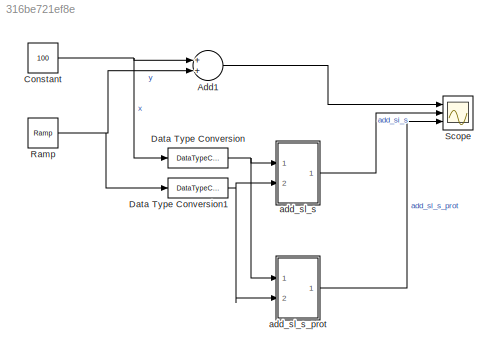
MODEL slx_316be721ef8e
KIND model
CONFIG AbsTol = auto
CONFIG EnableMultiTasking = off
CONFIG FixedStep = 1
CONFIG MaxStep = auto
CONFIG MinStep = auto
CONFIG RelTol = 1e-3
CONFIG SampleTimeConstraint = Unconstrained
CONFIG Solver = FixedStepDiscrete
CONFIG SolverName = FixedStepDiscrete
CONFIG StartTime = 0.0
CONFIG StopTime = 200
BLOCK [Sum] Add1
  AccumDataTypeStr = double
  InputSameDT = off
  OutDataTypeStr = Inherit: Same as accumulator
  Ports = [2, 1]
  SaturateOnIntegerOverflow = off
BLOCK [Constant] Constant
  Value = 100
BLOCK [DataTypeConversion] Data Type Conversion
  OutDataTypeStr = int8
  RndMeth = Floor
  SaturateOnIntegerOverflow = off
BLOCK [DataTypeConversion] Data Type Conversion1
  OutDataTypeStr = int8
  RndMeth = Floor
  SaturateOnIntegerOverflow = off
BLOCK [Reference] Ramp  REF=simulink/Sources/Ramp
  Ports = [0, 1]
  SourceBlock = simulink/Sources/Ramp
  SourceProductBaseCode = SL
  SourceProductName = Simulink
  SourceType = Ramp
BLOCK [Scope] Scope
  NumInputPorts = 3
  Ports = [3]
  ScopeSpecificationString = Simulink.scopes.TimeScopeBlockCfg('CurrentConfiguration', extmgr.ConfigurationSet(extmgr.Configuration('Core','General UI',true),extmgr.Configuration('Core','Source UI',true),extmgr.Configuration('Sources','WiredSimulink',true),extmgr.Configuration('Visuals','Time Domain',true,'SerializedDisplays',{struct('MinYLimReal','-181.5','MaxYLimReal','353.5','YLabelReal','','MinYLimMag',' 0.00000','MaxYLim...<+1419ch>
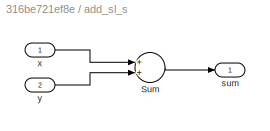
BLOCK [SubSystem] add_sl_s
  Ports = [2, 1]
  RequestExecContextInheritance = off
  Variant = off
BLOCK [Sum] add_sl_s/Sum
  AccumDataTypeStr = int8
  InputSameDT = off
  OutDataTypeStr = Inherit: Same as accumulator
  Ports = [2, 1]
  SaturateOnIntegerOverflow = off
BLOCK [Outport] add_sl_s/sum
  IconDisplay = Port number
BLOCK [Inport] add_sl_s/x
  IconDisplay = Port number
BLOCK [Inport] add_sl_s/y
  IconDisplay = Port number
  Port = 2
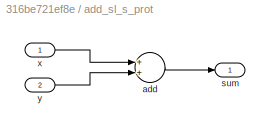
BLOCK [SubSystem] add_sl_s_prot
  Ports = [2, 1]
  RequestExecContextInheritance = off
  Variant = off
BLOCK [Sum] add_sl_s_prot/add
  AccumDataTypeStr = int8
  InputSameDT = off
  OutDataTypeStr = Inherit: Same as accumulator
  Ports = [2, 1]
BLOCK [Outport] add_sl_s_prot/sum
  IconDisplay = Port number
BLOCK [Inport] add_sl_s_prot/x
  IconDisplay = Port number
BLOCK [Inport] add_sl_s_prot/y
  IconDisplay = Port number
  Port = 2
LINE Add1:1 -> Scope:1
NET Constant:1 -> Add1:1, Data Type Conversion:1
NET Data Type Conversion1:1 -> add_sl_s:2, add_sl_s_prot:2
NET Data Type Conversion:1 -> add_sl_s:1, add_sl_s_prot:1
NET Ramp:1 -> Add1:2, Data Type Conversion1:1
LINE add_sl_s/Sum:1 -> add_sl_s/sum:1
LINE add_sl_s/x:1 -> add_sl_s/Sum:1
LINE add_sl_s/y:1 -> add_sl_s/Sum:2
LINE add_sl_s:1 -> Scope:2
LINE add_sl_s_prot/add:1 -> add_sl_s_prot/sum:1
LINE add_sl_s_prot/x:1 -> add_sl_s_prot/add:1
LINE add_sl_s_prot/y:1 -> add_sl_s_prot/add:2
LINE add_sl_s_prot:1 -> Scope:3
note: NET lines group one-source signal fan-out (src -> all destinations, sorted); 1:1 wires keep LINE
